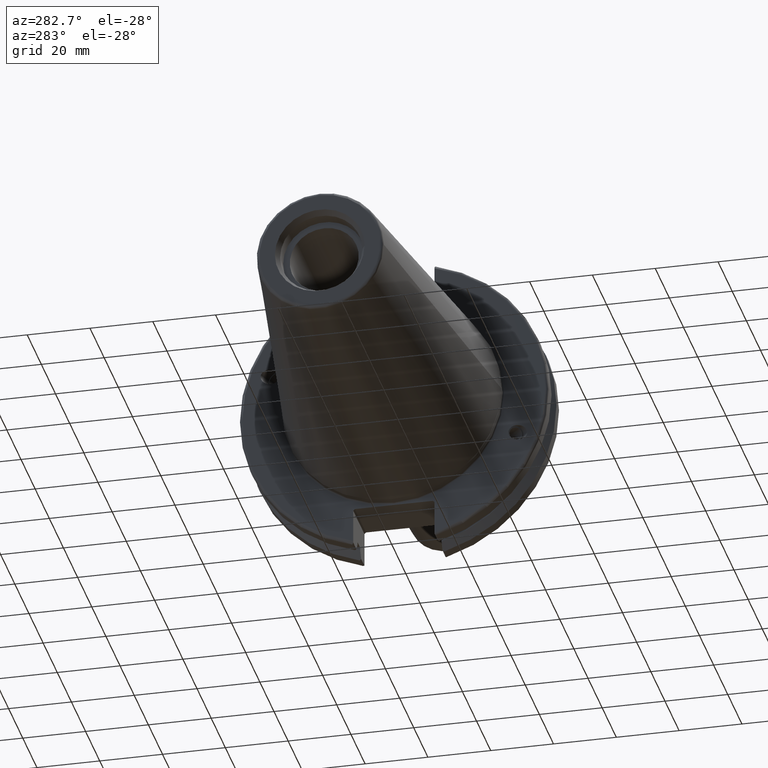
[diagram: clean part render]
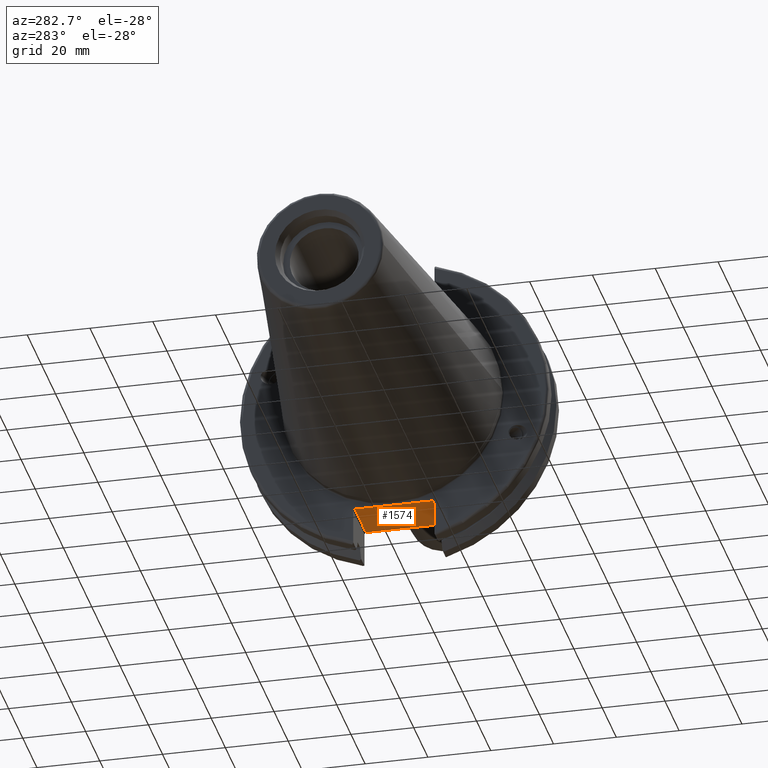
[diagram: same view with one face highlighted and labeled with its STEP entity id]
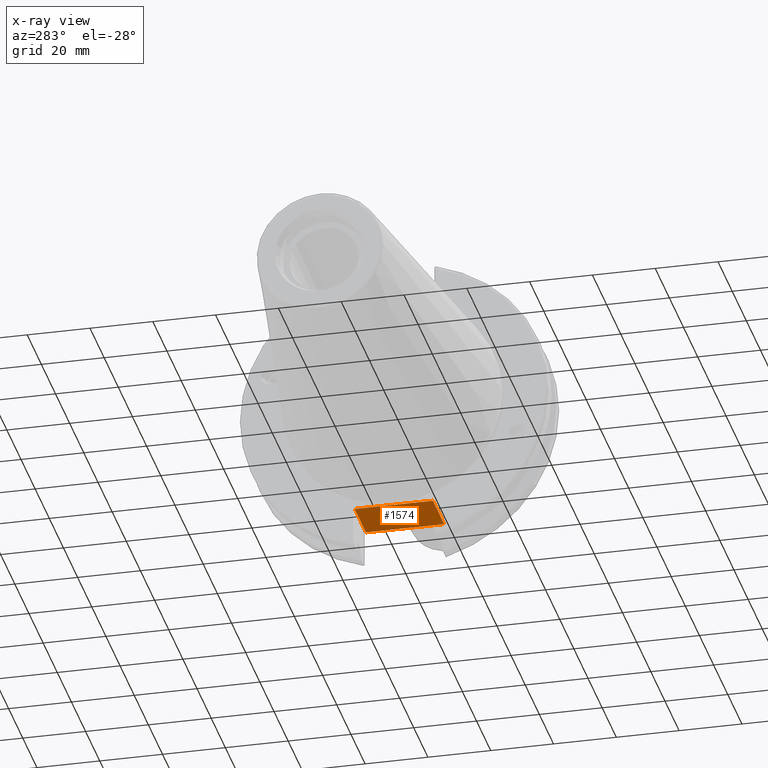
[diagram: x-ray of the same camera — body ghosted, the highlighted face saturated]
A machine part, auxiliary view. The second image highlights one B-rep face of the part: STEP entity #1574.
The next image is the same camera in x-ray: the body ghosted, the highlighted face saturated — about 0% of this face is hidden behind the body in this view.
In plain terms, the highlighted planar face has unit normal (0, 0, 1).
Its self-contained STEP definition (entity closure, byte-faithful):
#137=PLANE('',#1760);
#215=FACE_OUTER_BOUND('',#323,.T.);
#323=EDGE_LOOP('',(#1359,#1360,#1361,#1362));
#444=LINE('',#2313,#538);
#486=LINE('',#2932,#580);
#507=LINE('',#3144,#601);
#508=LINE('',#3146,#602);
#538=VECTOR('',#1876,10.);
#580=VECTOR('',#2068,10.);
#601=VECTOR('',#2147,10.);
#602=VECTOR('',#2150,10.);
#648=VERTEX_POINT('',#2310);
#649=VERTEX_POINT('',#2312);
#736=VERTEX_POINT('',#2929);
#737=VERTEX_POINT('',#2931);
#812=EDGE_CURVE('',#648,#649,#444,.T.);
#927=EDGE_CURVE('',#736,#737,#486,.T.);
#982=EDGE_CURVE('',#649,#736,#507,.T.);
#983=EDGE_CURVE('',#737,#648,#508,.T.);
#1359=ORIENTED_EDGE('',*,*,#982,.F.);
#1360=ORIENTED_EDGE('',*,*,#812,.F.);
#1361=ORIENTED_EDGE('',*,*,#983,.F.);
#1362=ORIENTED_EDGE('',*,*,#927,.F.);
#1574=ADVANCED_FACE('',(#215),#137,.F.);
#1760=AXIS2_PLACEMENT_3D('',#3145,#2148,#2149);
#1876=DIRECTION('',(0.,1.,0.));
#2068=DIRECTION('',(0.,-1.,0.));
#2147=DIRECTION('',(-1.,2.63163976207444E-16,0.));
#2148=DIRECTION('center_axis',(0.,0.,1.));
#2149=DIRECTION('ref_axis',(1.,0.,0.));
#2150=DIRECTION('',(1.,2.63163976207445E-16,0.));
#2310=CARTESIAN_POINT('',(19.05,-12.45,-35.306));
#2312=CARTESIAN_POINT('',(19.05,12.45,-35.306));
#2313=CARTESIAN_POINT('',(19.05,-3.33066907387547E-15,-35.306));
#2929=CARTESIAN_POINT('',(3.175,12.45,-35.306));
#2931=CARTESIAN_POINT('',(3.175,-12.45,-35.306));
#2932=CARTESIAN_POINT('',(3.175,24.60625,-35.306));
#3144=CARTESIAN_POINT('',(10.63125,12.45,-35.306));
#3145=CARTESIAN_POINT('Origin',(18.0875,-6.66133814775094E-15,-35.306));
#3146=CARTESIAN_POINT('',(19.06875,-12.45,-35.306));